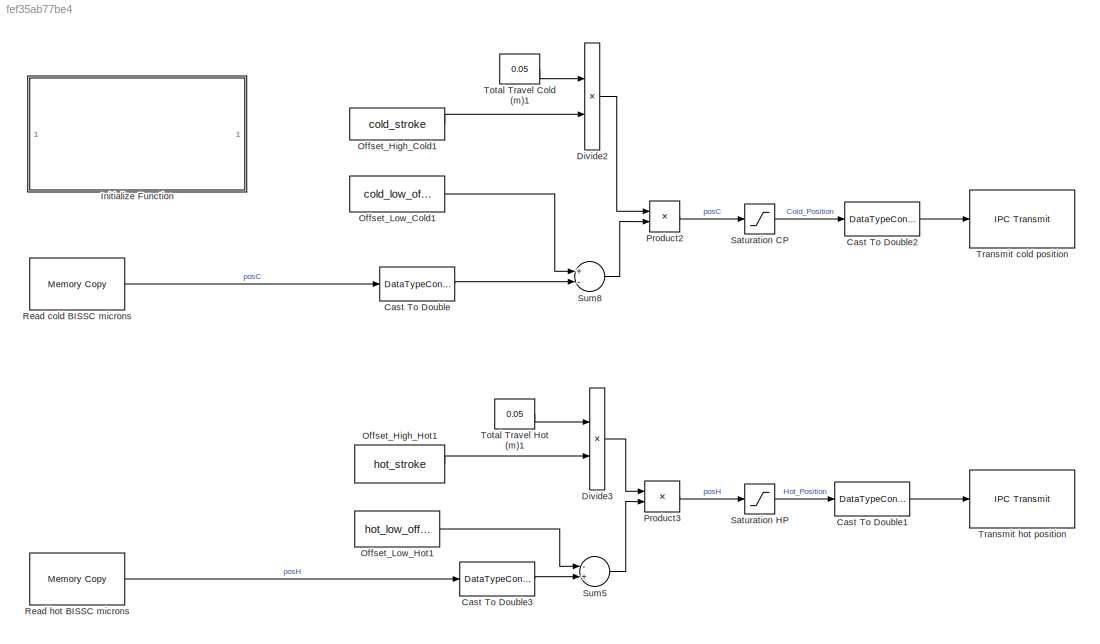
MODEL slx_fef35ab77be4
KIND model
CONFIG AbsTol = auto
CONFIG EnableMultiTasking = on
CONFIG FixedStep = Ts
CONFIG MaxStep = auto
CONFIG MinStep = auto
CONFIG RelTol = 1e-3
CONFIG SampleTimeConstraint = Unconstrained
CONFIG Solver = ode1
CONFIG SolverName = ode1
CONFIG StartTime = 0.0
CONFIG StopTime = inf
BLOCK [DataTypeConversion] Cast To Double
  OutDataTypeStr = double
  RndMeth = Floor
  SaturateOnIntegerOverflow = off
BLOCK [DataTypeConversion] Cast To Double1
  OutDataTypeStr = single
  RndMeth = Floor
  SaturateOnIntegerOverflow = off
BLOCK [DataTypeConversion] Cast To Double2
  OutDataTypeStr = single
  RndMeth = Floor
  SaturateOnIntegerOverflow = off
BLOCK [DataTypeConversion] Cast To Double3
  OutDataTypeStr = double
  RndMeth = Floor
  SaturateOnIntegerOverflow = off
BLOCK [Product] Divide2
  InputSameDT = off
  Inputs = */
  OutDataTypeStr = Inherit: Inherit via internal rule
  Ports = [2, 1]
  RndMeth = Floor
  SaturateOnIntegerOverflow = off
BLOCK [Product] Divide3
  InputSameDT = off
  Inputs = */
  OutDataTypeStr = Inherit: Inherit via internal rule
  Ports = [2, 1]
  RndMeth = Floor
  SaturateOnIntegerOverflow = off
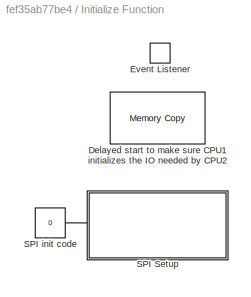
BLOCK [SubSystem] Initialize Function
  Ports = []
  RequestExecContextInheritance = off
  TreatAsAtomicUnit = on
BLOCK [Reference] Initialize Function/Delayed start to make sure CPU1 initializes the IO needed by CPU2  REF=idelinklib_common/Memory Copy
  Ports = []
  SourceBlock = idelinklib_common/Memory Copy
  SourceProductBaseCode = ME
  SourceProductName = MATLAB Coder
  SourceType = Memory Copy
BLOCK [EventListener] Initialize Function/Event Listener
  DisableCoverage = on
  EventName = reset
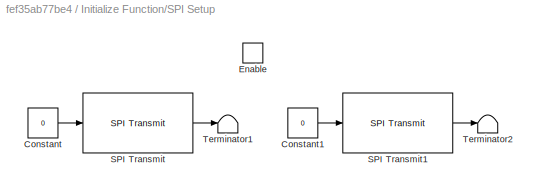
BLOCK [SubSystem] Initialize Function/SPI Setup
  Ports = [0, 0, 1]
  RequestExecContextInheritance = off
  TreatAsAtomicUnit = on
BLOCK [Constant] Initialize Function/SPI Setup/Constant
  OutDataTypeStr = uint16
  SampleTime = -1
  Value = 0
BLOCK [Constant] Initialize Function/SPI Setup/Constant1
  OutDataTypeStr = uint16
  SampleTime = -1
  Value = 0
BLOCK [EnablePort] Initialize Function/SPI Setup/Enable
  Ports = []
BLOCK [Reference] Initialize Function/SPI Setup/SPI Transmit  REF=c280xlib/SPI Transmit
  Ports = [1, 1]
  SourceBlock = c280xlib/SPI Transmit
  SourceProductBaseCode = TIC2000
  SourceProductName = Embedded Coder Support Package for Texas Instruments C2000 Processors
  SourceType = codertarget.tic2000.blocks.SPIWrite
BLOCK [Reference] Initialize Function/SPI Setup/SPI Transmit1  REF=c280xlib/SPI Transmit
  Ports = [1, 1]
  SourceBlock = c280xlib/SPI Transmit
  SourceProductBaseCode = TIC2000
  SourceProductName = Embedded Coder Support Package for Texas Instruments C2000 Processors
  SourceType = codertarget.tic2000.blocks.SPIWrite
BLOCK [Terminator] Initialize Function/SPI Setup/Terminator1
BLOCK [Terminator] Initialize Function/SPI Setup/Terminator2
BLOCK [Constant] Initialize Function/SPI init code
  OutDataTypeStr = uint16
  Value = 0
BLOCK [Constant] Offset_High_Cold1
  Value = cold_stroke
BLOCK [Constant] Offset_High_Hot1
  Value = hot_stroke
BLOCK [Constant] Offset_Low_Cold1
  Value = cold_low_offset
BLOCK [Constant] Offset_Low_Hot1
  Value = hot_low_offset
BLOCK [Product] Product2
  InputSameDT = off
  OutDataTypeStr = Inherit: Inherit via internal rule
  Ports = [2, 1]
  RndMeth = Floor
  SaturateOnIntegerOverflow = off
BLOCK [Product] Product3
  InputSameDT = off
  OutDataTypeStr = Inherit: Inherit via internal rule
  Ports = [2, 1]
  RndMeth = Floor
  SaturateOnIntegerOverflow = off
BLOCK [Reference] Read cold BISSC microns  REF=idelinklib_common/Memory Copy
  Ports = [0, 1]
  SourceBlock = idelinklib_common/Memory Copy
  SourceProductBaseCode = ME
  SourceProductName = MATLAB Coder
  SourceType = Memory Copy
BLOCK [Reference] Read hot BISSC microns  REF=idelinklib_common/Memory Copy
  Ports = [0, 1]
  SourceBlock = idelinklib_common/Memory Copy
  SourceProductBaseCode = ME
  SourceProductName = MATLAB Coder
  SourceType = Memory Copy
BLOCK [Saturate] Saturation CP
  InputPortMap = u0
  LowerLimit = 0.000
  OutMax = [0.050]
  OutMin = [0]
  Ports = [1, 1]
  UpperLimit = 0.050
BLOCK [Saturate] Saturation HP
  InputPortMap = u0
  LowerLimit = 0.000
  OutMax = [0.050]
  OutMin = [0]
  Ports = [1, 1]
  UpperLimit = 0.050
BLOCK [Sum] Sum5
  InputSameDT = off
  Inputs = -+
  OutDataTypeStr = Inherit: Inherit via internal rule
  Ports = [2, 1]
  SaturateOnIntegerOverflow = off
BLOCK [Sum] Sum8
  InputSameDT = off
  Inputs = +-
  OutDataTypeStr = Inherit: Inherit via internal rule
  Ports = [2, 1]
  SaturateOnIntegerOverflow = off
BLOCK [Constant] Total Travel Cold (m)1
  Value = 0.05
BLOCK [Constant] Total Travel Hot (m)1
  Value = 0.05
BLOCK [Reference] Transmit cold position  REF=c2837xDlib/IPC Transmit
  Ports = [1]
  SourceBlock = c2837xDlib/IPC Transmit
  SourceProductBaseCode = TIC2000
  SourceProductName = Embedded Coder Support Package for Texas Instruments C2000 Processors
  SourceType = F2837xD IPC Transmit
BLOCK [Reference] Transmit hot position  REF=c2837xDlib/IPC Transmit
  Ports = [1]
  SourceBlock = c2837xDlib/IPC Transmit
  SourceProductBaseCode = TIC2000
  SourceProductName = Embedded Coder Support Package for Texas Instruments C2000 Processors
  SourceType = F2837xD IPC Transmit
LINE Cast To Double1:1 -> Transmit hot position:1
LINE Cast To Double2:1 -> Transmit cold position:1
LINE Cast To Double3:1 -> Sum5:2
LINE Cast To Double:1 -> Sum8:2
LINE Divide2:1 -> Product2:1
LINE Divide3:1 -> Product3:1
LINE Initialize Function/SPI Setup/Constant1:1 -> Initialize Function/SPI Setup/SPI Transmit1:1
LINE Initialize Function/SPI Setup/Constant:1 -> Initialize Function/SPI Setup/SPI Transmit:1
LINE Initialize Function/SPI Setup/SPI Transmit1:1 -> Initialize Function/SPI Setup/Terminator2:1
LINE Initialize Function/SPI Setup/SPI Transmit:1 -> Initialize Function/SPI Setup/Terminator1:1
LINE Initialize Function/SPI init code:1 -> Initialize Function/SPI Setup:enable
LINE Offset_High_Cold1:1 -> Divide2:2
LINE Offset_High_Hot1:1 -> Divide3:2
LINE Offset_Low_Cold1:1 -> Sum8:1
LINE Offset_Low_Hot1:1 -> Sum5:1
LINE Product2:1 -> Saturation CP:1
LINE Product3:1 -> Saturation HP:1
LINE Read cold BISSC microns:1 -> Cast To Double:1
LINE Read hot BISSC microns:1 -> Cast To Double3:1
LINE Saturation CP:1 -> Cast To Double2:1
LINE Saturation HP:1 -> Cast To Double1:1
LINE Sum5:1 -> Product3:2
LINE Sum8:1 -> Product2:2
LINE Total Travel Cold (m)1:1 -> Divide2:1
LINE Total Travel Hot (m)1:1 -> Divide3:1
